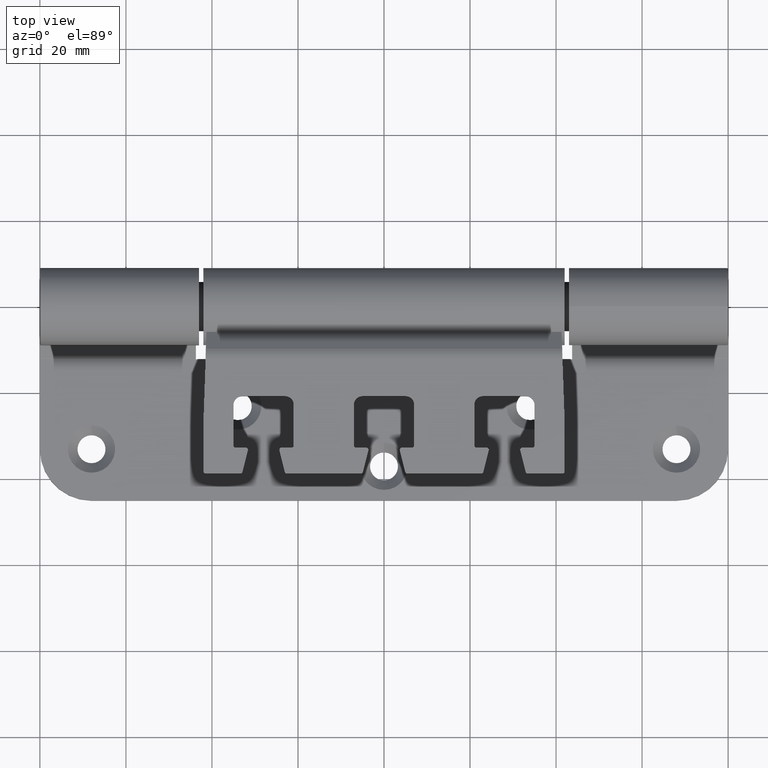
[diagram: clean part render]
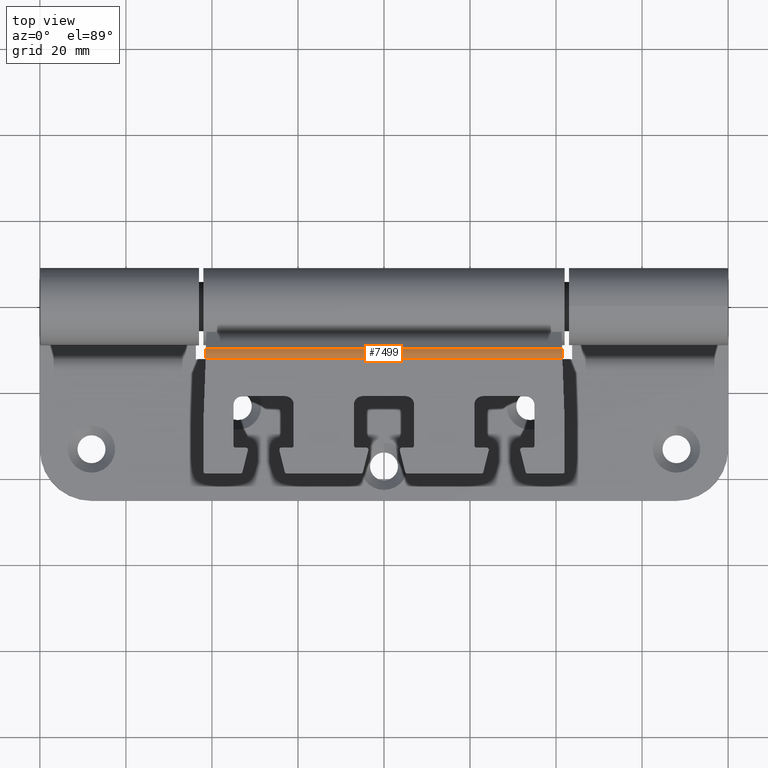
[diagram: same view with one face highlighted and labeled with its STEP entity id]
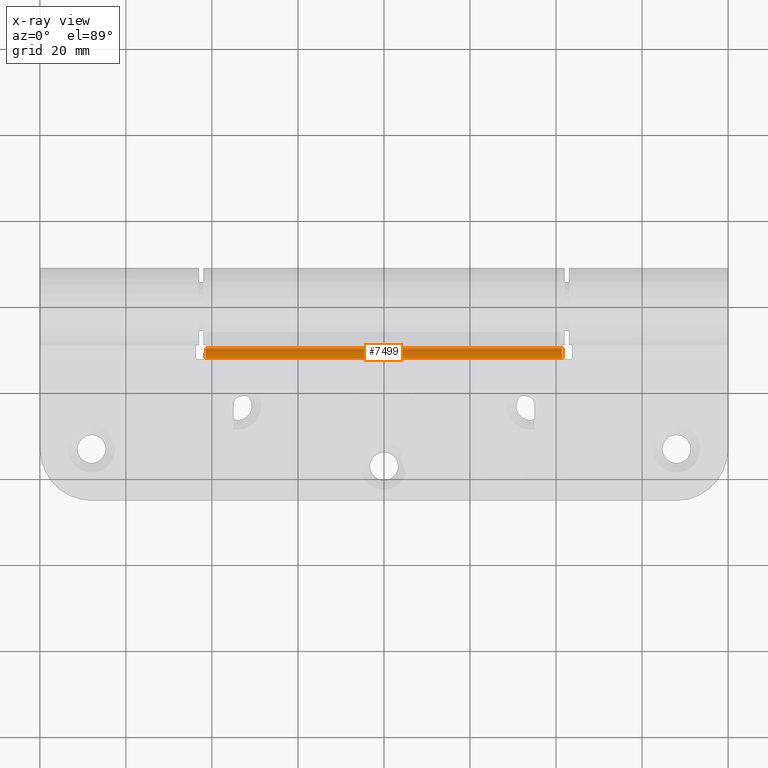
[diagram: x-ray of the same camera — body ghosted, the highlighted face saturated]
A machine part, top view. The second image highlights one B-rep face of the part: STEP entity #7499.
The next image is the same camera in x-ray: the body ghosted, the highlighted face saturated — about 0% of this face is hidden behind the body in this view.
In plain terms, the highlighted cylindrical surface (edge-blend (fillet) strip) has radius 3.5 mm, axis along (1, -0, -0).
Its self-contained STEP definition (entity closure, byte-faithful):
#131 = ORIENTED_EDGE ( 'NONE', *, *, #1590, .F. ) ;
#544 = EDGE_LOOP ( 'NONE', ( #131, #5601, #11543, #12534 ) ) ;
#801 = CARTESIAN_POINT ( 'NONE',  ( -12.18030679136777500, -11.00000000000000000, -41.47866385739928300 ) ) ;
#1119 = DIRECTION ( 'NONE',  ( 0.0000000000000000000, -1.401298464324817400E-045, -1.000000000000000000 ) ) ;
#1371 = CARTESIAN_POINT ( 'NONE',  ( -9.946500675704941200, -10.19445917349424700, -41.43031973126505100 ) ) ;
#1590 = EDGE_CURVE ( 'NONE', #12299, #8461, #10951, .T. ) ;
#2085 = CARTESIAN_POINT ( 'NONE',  ( -12.18030679136777500, -11.00000000000000000, 41.47866385739928300 ) ) ;
#2591 = CARTESIAN_POINT ( 'NONE',  ( -12.18030679136777500, -11.00000000000000000, 41.47866385739928300 ) ) ;
#2670 = VERTEX_POINT ( 'NONE', #801 ) ;
#3042 = CARTESIAN_POINT ( 'NONE',  ( -11.36947366344051200, -11.00000000000000400, -41.46248390496692300 ) ) ;
#3660 = DIRECTION ( 'NONE',  ( 0.0000000000000000000, -1.401298464324817400E-045, -1.000000000000000000 ) ) ;
#5211 = CARTESIAN_POINT ( 'NONE',  ( -10.57071689276687800, -10.71195745919311200, -41.44649968369741100 ) ) ;
#5601 = ORIENTED_EDGE ( 'NONE', *, *, #7416, .T. ) ;
#5781 = CARTESIAN_POINT ( 'NONE',  ( -12.18030679136777500, -11.00000000000000200, 42.00000000000000000 ) ) ;
#6327 = CYLINDRICAL_SURFACE ( 'NONE', #6576, 3.500000000000000400 ) ;
#6497 = CARTESIAN_POINT ( 'NONE',  ( -12.18030679136777500, -7.499999999999998200, 83.02309781080049300 ) ) ;
#6523 = VECTOR ( 'NONE', #11016, 1000.000000000000000 ) ;
#6566 = EDGE_CURVE ( 'NONE', #8461, #7342, #12046, .T. ) ;
#6576 = AXIS2_PLACEMENT_3D ( 'NONE', #6497, #1119, #9720 ) ;
#7342 = VERTEX_POINT ( 'NONE', #1371 ) ;
#7416 = EDGE_CURVE ( 'NONE', #12299, #2670, #12988, .T. ) ;
#7499 = ADVANCED_FACE ( 'NONE', ( #12708 ), #6327, .T. ) ;
#8461 = VERTEX_POINT ( 'NONE', #8801 ) ;
#8479 = CARTESIAN_POINT ( 'NONE',  ( -11.36947366344054100, -11.00000000000000400, 41.46248390496693000 ) ) ;
#8801 = CARTESIAN_POINT ( 'NONE',  ( -9.946500675704941200, -10.19445917349424700, 41.43031973126505800 ) ) ;
#9720 = DIRECTION ( 'NONE',  ( 0.0000000000000000000, 1.000000000000000000, 0.0000000000000000000 ) ) ;
#10299 = B_SPLINE_CURVE_WITH_KNOTS ( 'NONE', 3,
 ( #10949, #5211, #3042, #11871 ),
 .UNSPECIFIED., .F., .F.,
 ( 4, 4 ),
 ( 0.0000000000000000000, 1.000000000000000000 ),
 .UNSPECIFIED. ) ;
#10669 = CARTESIAN_POINT ( 'NONE',  ( -9.946500675704941200, -10.19445917349424700, 41.43031973126505800 ) ) ;
#10949 = CARTESIAN_POINT ( 'NONE',  ( -9.946500675704941200, -10.19445917349424700, -41.43031973126505100 ) ) ;
#10951 = B_SPLINE_CURVE_WITH_KNOTS ( 'NONE', 3,
 ( #2085, #8479, #12949, #10669 ),
 .UNSPECIFIED., .F., .F.,
 ( 4, 4 ),
 ( 0.0000000000000000000, 1.000000000000000000 ),
 .UNSPECIFIED. ) ;
#11016 = DIRECTION ( 'NONE',  ( 1.788702331130122600E-045, -7.562681082485599300E-046, -1.000000000000000000 ) ) ;
#11537 = EDGE_CURVE ( 'NONE', #7342, #2670, #10299, .T. ) ;
#11543 = ORIENTED_EDGE ( 'NONE', *, *, #11537, .F. ) ;
#11592 = CARTESIAN_POINT ( 'NONE',  ( -9.946500675704943000, -10.19445917349424300, 42.00000000000000000 ) ) ;
#11871 = CARTESIAN_POINT ( 'NONE',  ( -12.18030679136777500, -11.00000000000000000, -41.47866385739928300 ) ) ;
#12046 = LINE ( 'NONE', #11592, #6523 ) ;
#12299 = VERTEX_POINT ( 'NONE', #2591 ) ;
#12534 = ORIENTED_EDGE ( 'NONE', *, *, #6566, .F. ) ;
#12708 = FACE_OUTER_BOUND ( 'NONE', #544, .T. ) ;
#12949 = CARTESIAN_POINT ( 'NONE',  ( -10.57071689276686200, -10.71195745919309400, 41.44649968369741100 ) ) ;
#12988 = LINE ( 'NONE', #5781, #13745 ) ;
#13745 = VECTOR ( 'NONE', #3660, 1000.000000000000000 ) ;